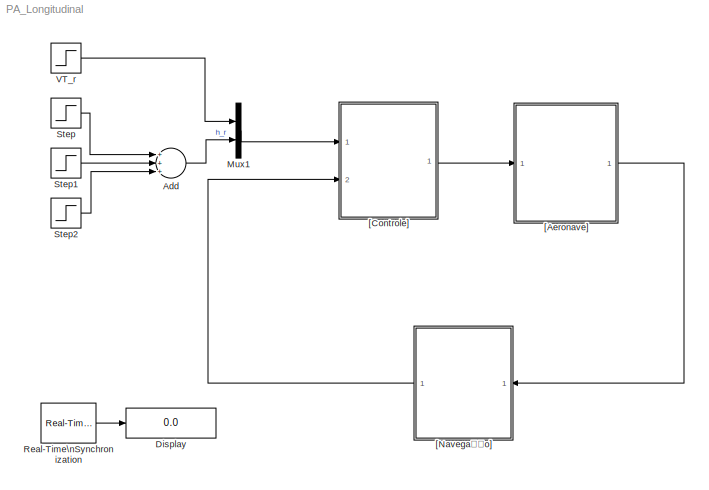
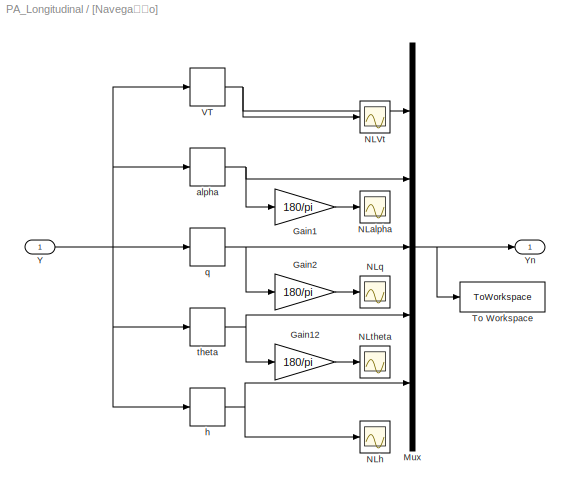
MODEL PA_Longitudinal
KIND model
BLOCK [Sum] Add
  InputSameDT = off
  Inputs = +++
  OutDataTypeStr = Inherit: Inherit via internal rule
  Ports = [3, 1]
  SID = 689
  SaturateOnIntegerOverflow = off
BLOCK [Display] Display
  Commented = on
  Decimation = 1
  Ports = [1]
  SID = 695
BLOCK [Mux] Mux1
  DisplayOption = bar
  Inputs = 2
  Ports = [2, 1]
  SID = 690
BLOCK [Reference] Real-Time\nSynchronization  REF=sldrtlib/Real-Time\nSynchronization
  Commented = on
  MaxMissedTicks = inf
  Ports = [0, 1]
  SID = 656
  SampleTime = 0.01
  ShowMissedTicks = on
  SourceBlock = sldrtlib/Real-Time\nSynchronization
  SourceType = Simulink Desktop Real-Time Synchronization
  YieldWhenWaiting = on
BLOCK [Step] Step
  After = -Xe(12)+25
  Before = -Xe(12)
  SID = 691
  SampleTime = 0
  Time = 50
BLOCK [Step] Step1
  After = -50
  SID = 692
  SampleTime = 0
  Time = 150
BLOCK [Step] Step2
  After = 25
  SID = 693
  SampleTime = 0
  Time = 250
BLOCK [Step] VT_r
  After = norm(Xe(1:3))
  Before = norm(Xe(1:3))
  SID = 694
  SampleTime = 0
  Time = 0
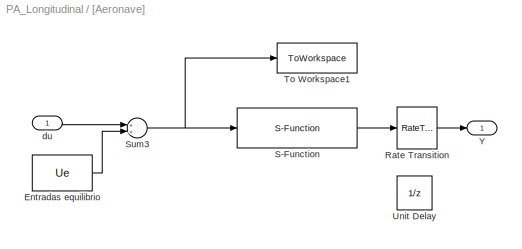
BLOCK [SubSystem] [Aeronave]
  Ports = [1, 1]
  RequestExecContextInheritance = off
  SID = 211
  Variant = off
BLOCK [Constant] [Aeronave]/Entradas equilibrio
  SID = 213
  Value = Ue
BLOCK [RateTransition] [Aeronave]/Rate Transition
  OutPortSampleTime = 0.01
  SID = 676
BLOCK [S-Function] [Aeronave]/S-Function
  EnableBusSupport = off
  FunctionName = sfunction_piper
  Parameters = par_gen,par_aero,par_prop, Xe
  Ports = [1, 1]
  SFunctionDeploymentMode = off
  SID = 216
BLOCK [Sum] [Aeronave]/Sum3
  InputSameDT = off
  OutDataTypeStr = Inherit: Inherit via internal rule
  Ports = [2, 1]
  SID = 217
  SaturateOnIntegerOverflow = off
BLOCK [ToWorkspace] [Aeronave]/To Workspace1
  MaxDataPoints = inf
  Ports = [1]
  SID = 526
  SampleTime = -1
  SaveFormat = Timeseries
  VariableName = EMB_U
BLOCK [UnitDelay] [Aeronave]/Unit Delay
  Commented = on
  InputProcessing = Elements as channels (sample based)
  SID = 696
  SampleTime = -1
BLOCK [Outport] [Aeronave]/Y
  IconDisplay = Port number
  SID = 219
BLOCK [Inport] [Aeronave]/du
  IconDisplay = Port number
  SID = 212
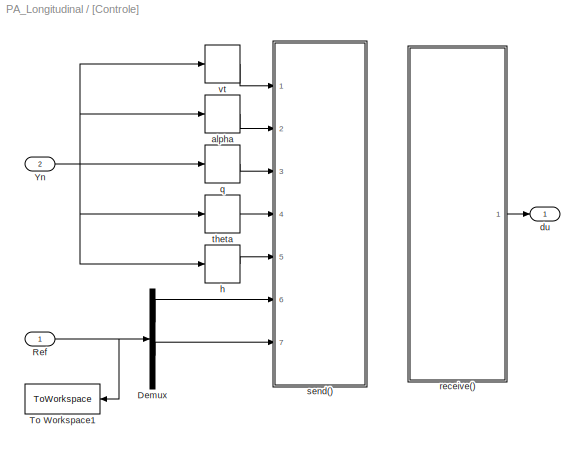
BLOCK [SubSystem] [Controle]
  Ports = [2, 1]
  RequestExecContextInheritance = off
  SID = 561
  Variant = off
BLOCK [Demux] [Controle]/Demux
  DisplayOption = bar
  Outputs = 2
  Ports = [1, 2]
  SID = 686
BLOCK [Inport] [Controle]/Ref
  IconDisplay = Port number
  SID = 562
BLOCK [ToWorkspace] [Controle]/To Workspace1
  MaxDataPoints = inf
  Ports = [1]
  SID = 533
  SampleTime = -1
  SaveFormat = Timeseries
  VariableName = EMBstep
BLOCK [Inport] [Controle]/Yn
  IconDisplay = Port number
  Port = 2
  SID = 617
BLOCK [Selector] [Controle]/alpha
  IndexOptions = Index vector (dialog)
  Indices = [2]
  InputPortWidth = 5
  OutputSizes = 1
  Ports = [1, 1]
  SID = 601
BLOCK [Outport] [Controle]/du
  IconDisplay = Port number
  SID = 608
BLOCK [Selector] [Controle]/h
  IndexOptions = Index vector (dialog)
  Indices = [5]
  InputPortWidth = 5
  OutputSizes = 1
  Ports = [1, 1]
  SID = 602
BLOCK [Selector] [Controle]/q
  IndexOptions = Index vector (dialog)
  Indices = [3]
  InputPortWidth = 5
  OutputSizes = 1
  Ports = [1, 1]
  SID = 598
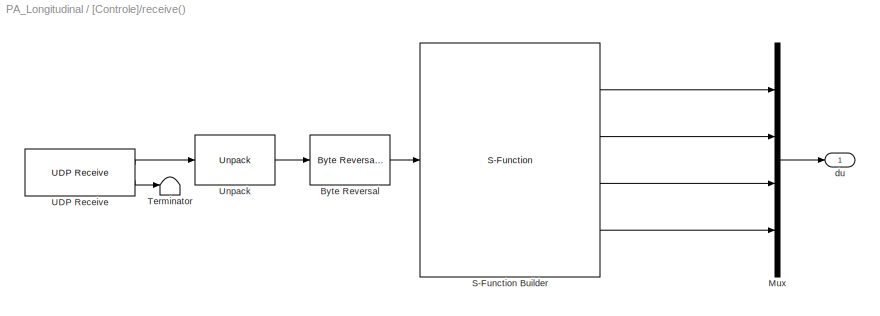
BLOCK [SubSystem] [Controle]/receive()
  Ports = [0, 1]
  RequestExecContextInheritance = off
  SID = 566
  Variant = off
BLOCK [Reference] [Controle]/receive()/Byte Reversal  REF=xpcutilitieslib/Byte Reversal 
  Ports = [1, 1]
  SID = 567
  SourceBlock = xpcutilitieslib/Byte Reversal
  SourceType = xpcreverseendian
  numInp = 1
BLOCK [Mux] [Controle]/receive()/Mux
  DisplayOption = bar
  Ports = [4, 1]
  SID = 604
BLOCK [S-Function] [Controle]/receive()/S-Function Builder
  CopyFcn = set_param(gcbh,'LinkStatus','none')
  EnableBusSupport = off
  FunctionName = dados_uC_lon
  InitFcn = try, set_param(gcb,'FunctionName','dados_uC_lon'), end
  OpenFcn = sfunctionwizard(gcbh)
  Ports = [1, 4]
  PreSaveFcn = try, set_param(gcb,'FunctionName','dados_uC_lon'), end
  SFunctionDeploymentMode = off
  SFunctionModules = dados_uC_lon_wrapper
  SID = 569
  WizardData = DataTag0
BLOCK [Terminator] [Controle]/receive()/Terminator
  SID = 570
BLOCK [Reference] [Controle]/receive()/UDP Receive  REF=instrumentlib/UDP Receive
  ByteOrder = BigEndian
  DataSize = 16
  DataType = uint8
  EnableBlockingMode = off
  Host = 192.168.1.101
  LocalPort = 45000
  Port = 45004
  Ports = [0, 2]
  SID = 571
  SampleTime = 0.01
  SourceBlock = instrumentlib/UDP Receive
  SourceType = UDP Receive
  Timeout = 10
BLOCK [Reference] [Controle]/receive()/Unpack  REF=xpcobsoletelib/Utilities/Unpack 
  Ports = [1, 1]
  SID = 572
  SourceBlock = xpcobsoletelib/Utilities/Unpack
  SourceType = xpcbyte2any
  byteAlign = 1
  datatypes = {'uint8'}
  dimensions = {[1 16]}
BLOCK [Outport] [Controle]/receive()/du
  IconDisplay = Port number
  SID = 576
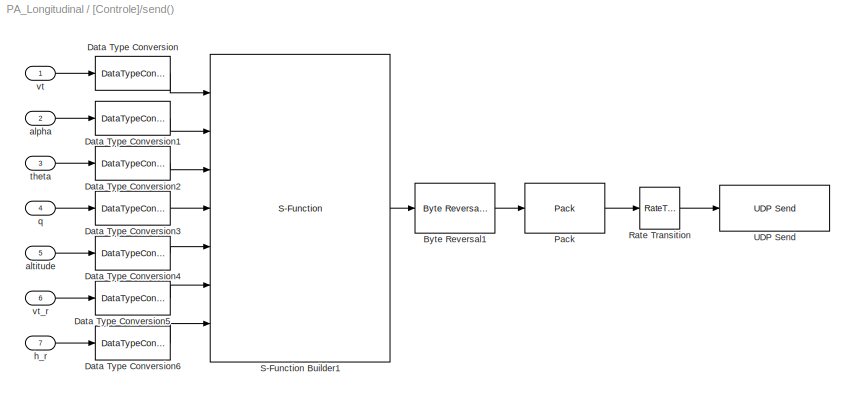
BLOCK [SubSystem] [Controle]/send()
  Ports = [7]
  RequestExecContextInheritance = off
  SID = 577
  Variant = off
BLOCK [Reference] [Controle]/send()/Byte Reversal1  REF=xpcutilitieslib/Byte Reversal 
  Ports = [1, 1]
  SID = 582
  SourceBlock = xpcutilitieslib/Byte Reversal
  SourceType = xpcreverseendian
  numInp = 1
BLOCK [DataTypeConversion] [Controle]/send()/Data Type Conversion
  OutDataTypeStr = single
  RndMeth = Floor
  SID = 583
  SaturateOnIntegerOverflow = off
BLOCK [DataTypeConversion] [Controle]/send()/Data Type Conversion1
  OutDataTypeStr = single
  RndMeth = Floor
  SID = 584
  SaturateOnIntegerOverflow = off
BLOCK [DataTypeConversion] [Controle]/send()/Data Type Conversion2
  OutDataTypeStr = single
  RndMeth = Floor
  SID = 585
  SaturateOnIntegerOverflow = off
BLOCK [DataTypeConversion] [Controle]/send()/Data Type Conversion3
  OutDataTypeStr = single
  RndMeth = Floor
  SID = 586
  SaturateOnIntegerOverflow = off
BLOCK [DataTypeConversion] [Controle]/send()/Data Type Conversion4
  OutDataTypeStr = single
  RndMeth = Floor
  SID = 595
  SaturateOnIntegerOverflow = off
BLOCK [DataTypeConversion] [Controle]/send()/Data Type Conversion5
  OutDataTypeStr = single
  RndMeth = Floor
  SID = 610
  SaturateOnIntegerOverflow = off
BLOCK [DataTypeConversion] [Controle]/send()/Data Type Conversion6
  OutDataTypeStr = single
  RndMeth = Floor
  SID = 678
  SaturateOnIntegerOverflow = off
BLOCK [Reference] [Controle]/send()/Pack  REF=xpcobsoletelib/Utilities/Pack 
  Ports = [1, 1]
  SID = 587
  SourceBlock = xpcobsoletelib/Utilities/Pack
  SourceType = xpcany2byte
  byteAlign = 1
  datatypes = {'uint8'}
BLOCK [RateTransition] [Controle]/send()/Rate Transition
  OutPortSampleTime = 0.01
  SID = 677
BLOCK [S-Function] [Controle]/send()/S-Function Builder1
  CopyFcn = set_param(gcbh,'LinkStatus','none')
  EnableBusSupport = off
  FunctionName = dados_matlab_lon
  InitFcn = try, set_param(gcb,'FunctionName','dados_matlab_lon'), end
  OpenFcn = sfunctionwizard(gcbh)
  Ports = [7, 1]
  PreSaveFcn = try, set_param(gcb,'FunctionName','dados_matlab_lon'), end
  SFunctionDeploymentMode = off
  SFunctionModules = dados_matlab_lon_wrapper
  SID = 589
  WizardData = DataTag1
BLOCK [Reference] [Controle]/send()/UDP Send  REF=instrumentlib/UDP Send
  ByteOrder = BigEndian
  EnableBlockingMode = on
  Host = 192.168.1.101
  LocalPort = 45001
  Port = 45004
  Ports = [1]
  SID = 590
  SourceBlock = instrumentlib/UDP Send
  SourceType = UDP Send
BLOCK [Inport] [Controle]/send()/alpha
  IconDisplay = Port number
  Port = 2
  SID = 579
BLOCK [Inport] [Controle]/send()/altitude
  IconDisplay = Port number
  Port = 5
  SID = 596
BLOCK [Inport] [Controle]/send()/h_r
  IconDisplay = Port number
  Port = 7
  SID = 679
BLOCK [Inport] [Controle]/send()/q
  IconDisplay = Port number
  Port = 4
  SID = 581
BLOCK [Inport] [Controle]/send()/theta
  IconDisplay = Port number
  Port = 3
  SID = 580
BLOCK [Inport] [Controle]/send()/vt
  IconDisplay = Port number
  SID = 578
BLOCK [Inport] [Controle]/send()/vt_r
  IconDisplay = Port number
  Port = 6
  SID = 603
BLOCK [Selector] [Controle]/theta
  IndexOptions = Index vector (dialog)
  Indices = [4]
  InputPortWidth = 5
  OutputSizes = 1
  Ports = [1, 1]
  SID = 599
BLOCK [Selector] [Controle]/vt
  IndexOptions = Index vector (dialog)
  Indices = [1]
  InputPortWidth = 5
  OutputSizes = 1
  Ports = [1, 1]
  SID = 600
BLOCK [SubSystem] [Navegação]
  Ports = [1, 1]
  RequestExecContextInheritance = off
  SID = 267
  Variant = off
BLOCK [Gain] [Navegação]/Gain1
  Gain = 180/pi
  OutDataTypeStr = Inherit: Inherit via internal rule
  ParamDataTypeStr = Inherit: Inherit via internal rule
  SID = 522
  SaturateOnIntegerOverflow = off
BLOCK [Gain] [Navegação]/Gain12
  Gain = 180/pi
  OutDataTypeStr = Inherit: Inherit via internal rule
  ParamDataTypeStr = Inherit: Inherit via internal rule
  SID = 271
  SaturateOnIntegerOverflow = off
BLOCK [Gain] [Navegação]/Gain2
  Gain = 180/pi
  OutDataTypeStr = Inherit: Inherit via internal rule
  ParamDataTypeStr = Inherit: Inherit via internal rule
  SID = 524
  SaturateOnIntegerOverflow = off
BLOCK [Mux] [Navegação]/Mux
  DisplayOption = bar
  Inputs = 5
  Ports = [5, 1]
  SID = 274
BLOCK [Scope] [Navegação]/NLVt
  Ports = [1]
  SID = 282
  ScopeSpecificationString = Simulink.scopes.TimeScopeBlockCfg('CurrentConfiguration', extmgr.ConfigurationSet(extmgr.Configuration('Core','General UI',true),extmgr.Configuration('Core','Source UI',true),extmgr.Configuration('Sources','WiredSimulink',true,'DataLoggingVariableName','ScopeData3','DataLoggingSaveFormat','StructureWithTime','DataLoggingLimitDataPoints',true,'DataLoggingDecimation','1','DataLoggingDecimateData',tr...<+1750ch>
BLOCK [Scope] [Navegação]/NLalpha
  Ports = [1]
  SID = 523
  ScopeSpecificationString = Simulink.scopes.TimeScopeBlockCfg('CurrentConfiguration', extmgr.ConfigurationSet(extmgr.Configuration('Core','General UI',true),extmgr.Configuration('Core','Source UI',true),extmgr.Configuration('Sources','WiredSimulink',true,'DataLoggingVariableName','ScopeData8','DataLoggingSaveFormat','StructureWithTime','DataLoggingLimitDataPoints',true,'DataLoggingDecimation','1','DataLoggingDecimateData',tr...<+1693ch>
BLOCK [Scope] [Navegação]/NLh
  Ports = [1]
  SID = 276
  ScopeSpecificationString = Simulink.scopes.TimeScopeBlockCfg('CurrentConfiguration', extmgr.ConfigurationSet(extmgr.Configuration('Core','General UI',true),extmgr.Configuration('Core','Source UI',true),extmgr.Configuration('Sources','WiredSimulink',true,'DataLoggingVariableName','ScopeData5','DataLoggingSaveFormat','StructureWithTime','DataLoggingLimitDataPoints',true,'DataLoggingDecimation','1','DataLoggingDecimateData',tr...<+1729ch>
BLOCK [Scope] [Navegação]/NLq
  Ports = [1]
  SID = 525
  ScopeSpecificationString = Simulink.scopes.TimeScopeBlockCfg('CurrentConfiguration', extmgr.ConfigurationSet(extmgr.Configuration('Core','General UI',true),extmgr.Configuration('Core','Source UI',true),extmgr.Configuration('Sources','WiredSimulink',true,'DataLoggingVariableName','ScopeData9','DataLoggingSaveFormat','StructureWithTime','DataLoggingLimitDataPoints',true,'DataLoggingDecimation','1','DataLoggingDecimateData',tr...<+1705ch>
BLOCK [Scope] [Navegação]/NLtheta
  Ports = [1]
  SID = 277
  ScopeSpecificationString = Simulink.scopes.TimeScopeBlockCfg('CurrentConfiguration', extmgr.ConfigurationSet(extmgr.Configuration('Core','General UI',true),extmgr.Configuration('Core','Source UI',true),extmgr.Configuration('Sources','WiredSimulink',true,'DataLoggingVariableName','ScopeData7','DataLoggingSaveFormat','StructureWithTime','DataLoggingLimitDataPoints',true,'DataLoggingDecimation','1','DataLoggingDecimateData',tr...<+1748ch>
BLOCK [ToWorkspace] [Navegação]/To Workspace
  MaxDataPoints = inf
  Ports = [1]
  SID = 527
  SampleTime = -1
  SaveFormat = Timeseries
  VariableName = EMB_Y
BLOCK [Selector] [Navegação]/VT
  IndexOptions = Index vector (dialog)
  Indices = [1]
  InputPortWidth = 12
  OutputSizes = 1
  Ports = [1, 1]
  SID = 283
BLOCK [Inport] [Navegação]/Y
  IconDisplay = Port number
  SID = 268
BLOCK [Outport] [Navegação]/Yn
  IconDisplay = Port number
  SID = 286
BLOCK [Selector] [Navegação]/alpha
  IndexOptions = Index vector (dialog)
  Indices = [2]
  InputPortWidth = 12
  OutputSizes = 1
  Ports = [1, 1]
  SID = 284
BLOCK [Selector] [Navegação]/h
  IndexOptions = Index vector (dialog)
  Indices = [12]
  InputPortWidth = 12
  OutputSizes = 1
  Ports = [1, 1]
  SID = 273
BLOCK [Selector] [Navegação]/q
  IndexOptions = Index vector (dialog)
  Indices = [5]
  InputPortWidth = 12
  OutputSizes = 1
  Ports = [1, 1]
  SID = 285
BLOCK [Selector] [Navegação]/theta
  IndexOptions = Index vector (dialog)
  Indices = [8]
  InputPortWidth = 12
  OutputSizes = 1
  Ports = [1, 1]
  SID = 278
LINE Add:1 -> Mux1:2
LINE Mux1:1 -> [Controle]:1
LINE Real-Time\nSynchronization:1 -> Display:1
LINE Step1:1 -> Add:2
LINE Step2:1 -> Add:3
LINE Step:1 -> Add:1
LINE VT_r:1 -> Mux1:1
LINE [Aeronave]/Entradas equilibrio:1 -> [Aeronave]/Sum3:2
LINE [Aeronave]/Rate Transition:1 -> [Aeronave]/Y:1
LINE [Aeronave]/S-Function:1 -> [Aeronave]/Rate Transition:1
NET [Aeronave]/Sum3:1 -> [Aeronave]/S-Function:1, [Aeronave]/To Workspace1:1
LINE [Aeronave]/du:1 -> [Aeronave]/Sum3:1
LINE [Aeronave]:1 -> [Navegação]:1
LINE [Controle]/Demux:1 -> [Controle]/send():6
LINE [Controle]/Demux:2 -> [Controle]/send():7
NET [Controle]/Ref:1 -> [Controle]/Demux:1, [Controle]/To Workspace1:1
NET [Controle]/Yn:1 -> [Controle]/alpha:1, [Controle]/h:1, [Controle]/q:1, [Controle]/theta:1, [Controle]/vt:1
LINE [Controle]/alpha:1 -> [Controle]/send():2
LINE [Controle]/h:1 -> [Controle]/send():5
LINE [Controle]/q:1 -> [Controle]/send():3
LINE [Controle]/receive()/Byte Reversal:1 -> [Controle]/receive()/S-Function Builder:1
LINE [Controle]/receive()/Mux:1 -> [Controle]/receive()/du:1
LINE [Controle]/receive()/S-Function Builder:1 -> [Controle]/receive()/Mux:1
LINE [Controle]/receive()/S-Function Builder:2 -> [Controle]/receive()/Mux:2
LINE [Controle]/receive()/S-Function Builder:3 -> [Controle]/receive()/Mux:3
LINE [Controle]/receive()/S-Function Builder:4 -> [Controle]/receive()/Mux:4
LINE [Controle]/receive()/UDP Receive:1 -> [Controle]/receive()/Unpack:1
LINE [Controle]/receive()/UDP Receive:2 -> [Controle]/receive()/Terminator:1
LINE [Controle]/receive()/Unpack:1 -> [Controle]/receive()/Byte Reversal:1
LINE [Controle]/receive():1 -> [Controle]/du:1
LINE [Controle]/send()/Byte Reversal1:1 -> [Controle]/send()/Pack:1
LINE [Controle]/send()/Data Type Conversion1:1 -> [Controle]/send()/S-Function Builder1:2
LINE [Controle]/send()/Data Type Conversion2:1 -> [Controle]/send()/S-Function Builder1:3
LINE [Controle]/send()/Data Type Conversion3:1 -> [Controle]/send()/S-Function Builder1:4
LINE [Controle]/send()/Data Type Conversion4:1 -> [Controle]/send()/S-Function Builder1:5
LINE [Controle]/send()/Data Type Conversion5:1 -> [Controle]/send()/S-Function Builder1:6
LINE [Controle]/send()/Data Type Conversion6:1 -> [Controle]/send()/S-Function Builder1:7
LINE [Controle]/send()/Data Type Conversion:1 -> [Controle]/send()/S-Function Builder1:1
LINE [Controle]/send()/Pack:1 -> [Controle]/send()/Rate Transition:1
LINE [Controle]/send()/Rate Transition:1 -> [Controle]/send()/UDP Send:1
LINE [Controle]/send()/S-Function Builder1:1 -> [Controle]/send()/Byte Reversal1:1
LINE [Controle]/send()/alpha:1 -> [Controle]/send()/Data Type Conversion1:1
LINE [Controle]/send()/altitude:1 -> [Controle]/send()/Data Type Conversion4:1
LINE [Controle]/send()/h_r:1 -> [Controle]/send()/Data Type Conversion6:1
LINE [Controle]/send()/q:1 -> [Controle]/send()/Data Type Conversion3:1
LINE [Controle]/send()/theta:1 -> [Controle]/send()/Data Type Conversion2:1
LINE [Controle]/send()/vt:1 -> [Controle]/send()/Data Type Conversion:1
LINE [Controle]/send()/vt_r:1 -> [Controle]/send()/Data Type Conversion5:1
LINE [Controle]/theta:1 -> [Controle]/send():4
LINE [Controle]/vt:1 -> [Controle]/send():1
LINE [Controle]:1 -> [Aeronave]:1
LINE [Navegação]/Gain12:1 -> [Navegação]/NLtheta:1
LINE [Navegação]/Gain1:1 -> [Navegação]/NLalpha:1
LINE [Navegação]/Gain2:1 -> [Navegação]/NLq:1
NET [Navegação]/Mux:1 -> [Navegação]/To Workspace:1, [Navegação]/Yn:1
NET [Navegação]/VT:1 -> [Navegação]/Mux:1, [Navegação]/NLVt:1
NET [Navegação]/Y:1 -> [Navegação]/VT:1, [Navegação]/alpha:1, [Navegação]/h:1, [Navegação]/q:1, [Navegação]/theta:1
NET [Navegação]/alpha:1 -> [Navegação]/Gain1:1, [Navegação]/Mux:2
NET [Navegação]/h:1 -> [Navegação]/Mux:5, [Navegação]/NLh:1
NET [Navegação]/q:1 -> [Navegação]/Gain2:1, [Navegação]/Mux:3
NET [Navegação]/theta:1 -> [Navegação]/Gain12:1, [Navegação]/Mux:4
LINE [Navegação]:1 -> [Controle]:2
note: NET lines group one-source signal fan-out (src -> all destinations, sorted); 1:1 wires keep LINE
